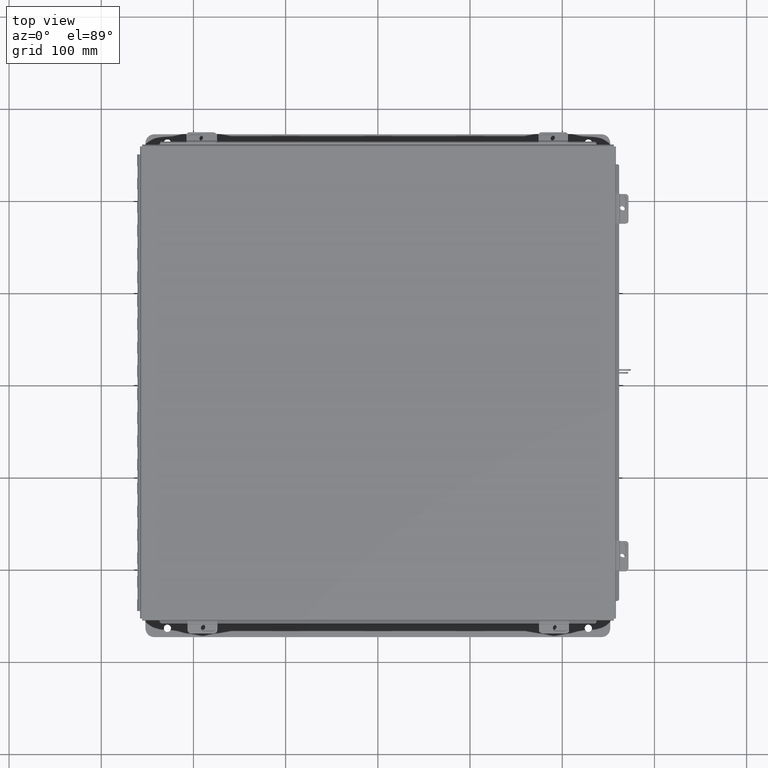
[diagram: clean part render]
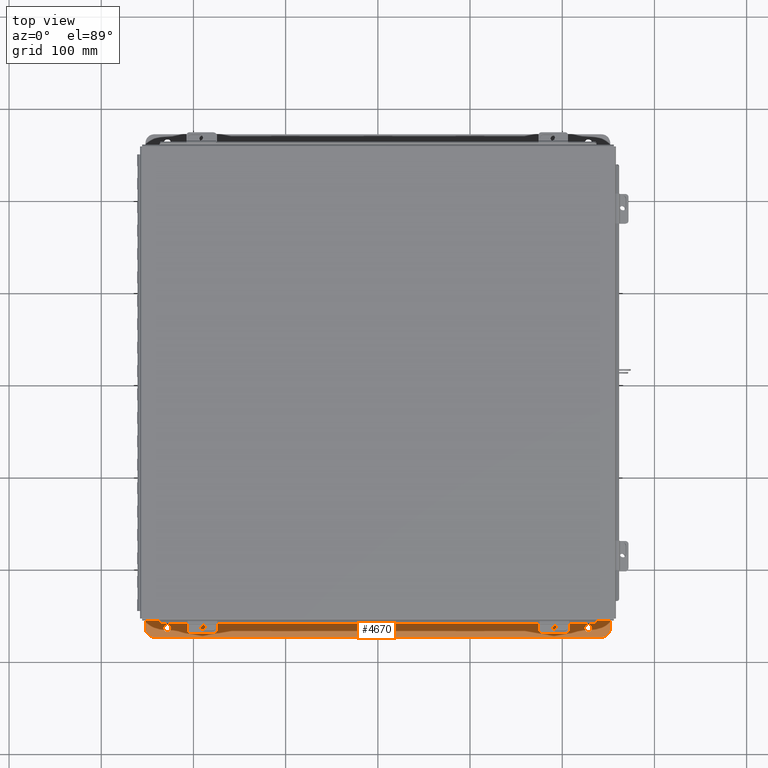
[diagram: same view with one face highlighted and labeled with its STEP entity id]
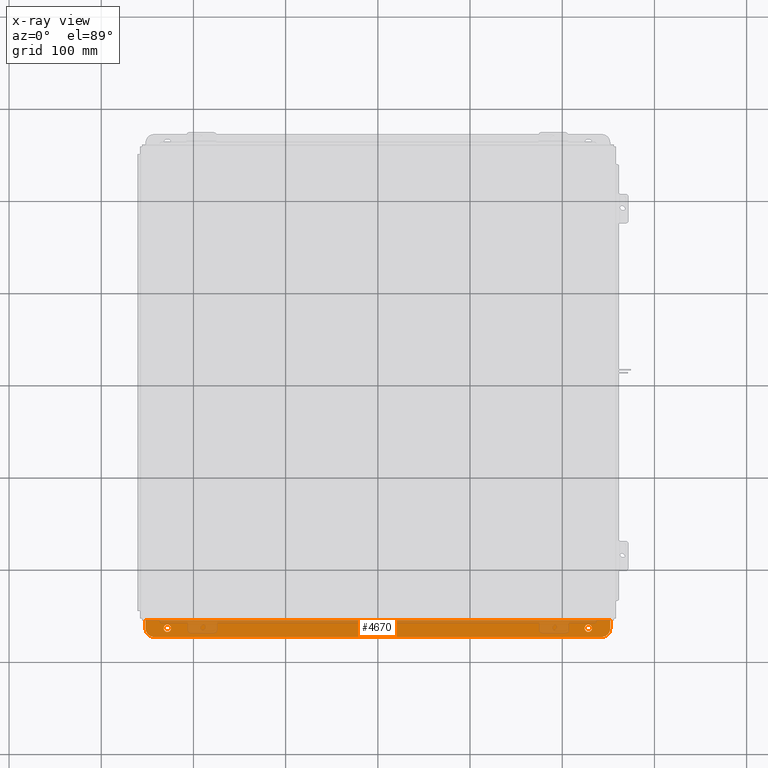
[diagram: x-ray of the same camera — body ghosted, the highlighted face saturated]
A machine part, top view. The second image highlights one B-rep face of the part: STEP entity #4670.
The next image is the same camera in x-ray: the body ghosted, the highlighted face saturated — about 27% of this face is hidden behind the body in this view.
In plain terms, the highlighted planar face has unit normal (0, -0, 1).
Its self-contained STEP definition (entity closure, byte-faithful):
#595 = CARTESIAN_POINT ( 'NONE',  ( -8.987799999999998200, 0.3628000000000008400, -4.112300000000001200 ) ) ;
#888 = AXIS2_PLACEMENT_3D ( 'NONE', #14264, #15981, #5671 ) ;
#908 = DIRECTION ( 'NONE',  ( -0.0000000000000000000, -3.702694488566362300E-015, -1.000000000000000000 ) ) ;
#938 = ORIENTED_EDGE ( 'NONE', *, *, #2925, .F. ) ;
#1858 = ORIENTED_EDGE ( 'NONE', *, *, #11204, .F. ) ;
#2346 = DIRECTION ( 'NONE',  ( 0.0000000000000000000, -1.000000000000000000, 3.502369222646487400E-015 ) ) ;
#2482 = AXIS2_PLACEMENT_3D ( 'NONE', #19845, #9485, #21601 ) ;
#2511 = EDGE_LOOP ( 'NONE', ( #938, #17728, #1858, #19489, #3172, #13372 ) ) ;
#2573 = EDGE_CURVE ( 'NONE', #14212, #21218, #16436, .T. ) ;
#2609 = ORIENTED_EDGE ( 'NONE', *, *, #13021, .T. ) ;
#2630 = CARTESIAN_POINT ( 'NONE',  ( 9.925299999999998200, 1.748382715945128500E-014, -4.112299999999999400 ) ) ;
#2925 = EDGE_CURVE ( 'NONE', #17895, #21218, #8885, .T. ) ;
#2969 = LINE ( 'NONE', #19242, #12122 ) ;
#3087 = EDGE_CURVE ( 'NONE', #11777, #16575, #9698, .T. ) ;
#3172 = ORIENTED_EDGE ( 'NONE', *, *, #8065, .F. ) ;
#3209 = CARTESIAN_POINT ( 'NONE',  ( -9.550299999999998200, 0.7378000000000011200, -4.112300000000002100 ) ) ;
#3215 = VECTOR ( 'NONE', #6114, 39.37007874015748100 ) ;
#3935 = PLANE ( 'NONE',  #888 ) ;
#4392 = DIRECTION ( 'NONE',  ( -1.000000000000000000, -2.752408485047608900E-017, 0.0000000000000000000 ) ) ;
#4429 = EDGE_CURVE ( 'NONE', #17895, #12416, #14529, .T. ) ;
#4670 = ADVANCED_FACE ( 'NONE', ( #14557, #19140, #5934 ), #3935, .T. ) ;
#5631 = DIRECTION ( 'NONE',  ( -0.0000000000000000000, -3.702694488566362300E-015, -1.000000000000000000 ) ) ;
#5671 = DIRECTION ( 'NONE',  ( -4.919856193148104900E-031, -1.000000000000000000, 3.702694488566362300E-015 ) ) ;
#5678 = EDGE_CURVE ( 'NONE', #16575, #11777, #8844, .T. ) ;
#5771 = EDGE_CURVE ( 'NONE', #14633, #19037, #6696, .T. ) ;
#5785 = EDGE_CURVE ( 'NONE', #21493, #16794, #21577, .T. ) ;
#5934 = FACE_OUTER_BOUND ( 'NONE', #2511, .T. ) ;
#5940 = CARTESIAN_POINT ( 'NONE',  ( 9.550299999999998200, 0.3628000000000161700, -4.112300000000001200 ) ) ;
#6114 = DIRECTION ( 'NONE',  ( -4.919856193148104900E-031, -1.000000000000000000, 3.702694488566362300E-015 ) ) ;
#6696 = CIRCLE ( 'NONE', #19583, 0.1560000000000001700 ) ;
#7365 = EDGE_LOOP ( 'NONE', ( #15578, #2609 ) ) ;
#7685 = DIRECTION ( 'NONE',  ( 0.0000000000000000000, -1.000000000000000000, 4.370956789862820400E-015 ) ) ;
#8065 = EDGE_CURVE ( 'NONE', #14212, #21493, #12925, .T. ) ;
#8138 = AXIS2_PLACEMENT_3D ( 'NONE', #15943, #5631, #17681 ) ;
#8844 = CIRCLE ( 'NONE', #10300, 0.1560000000000001700 ) ;
#8885 = LINE ( 'NONE', #16102, #21615 ) ;
#8918 = DIRECTION ( 'NONE',  ( 4.919856193148104900E-031, 1.000000000000000000, -3.702694488566362300E-015 ) ) ;
#9485 = DIRECTION ( 'NONE',  ( 0.0000000000000000000, 3.702694488566362300E-015, 1.000000000000000000 ) ) ;
#9521 = CARTESIAN_POINT ( 'NONE',  ( 9.925299999999998200, 0.01300000000001759100, -4.112299999999999400 ) ) ;
#9527 = DIRECTION ( 'NONE',  ( -0.0000000000000000000, -3.702694488566362300E-015, -1.000000000000000000 ) ) ;
#9567 = CARTESIAN_POINT ( 'NONE',  ( 9.925299999999998200, 0.01300000000001759100, -4.112299999999999400 ) ) ;
#9608 = AXIS2_PLACEMENT_3D ( 'NONE', #19891, #9527, #21644 ) ;
#9698 = CIRCLE ( 'NONE', #8138, 0.1560000000000001700 ) ;
#10300 = AXIS2_PLACEMENT_3D ( 'NONE', #595, #12664, #2346 ) ;
#10385 = CARTESIAN_POINT ( 'NONE',  ( -9.925299999999996500, 0.01299999999999792100, -4.112300000000003800 ) ) ;
#11204 = EDGE_CURVE ( 'NONE', #16794, #12416, #2969, .T. ) ;
#11255 = CARTESIAN_POINT ( 'NONE',  ( 8.987799999999998200, 0.3628000000000161700, -4.112300000000001200 ) ) ;
#11284 = AXIS2_PLACEMENT_3D ( 'NONE', #5940, #17983, #7685 ) ;
#11777 = VERTEX_POINT ( 'NONE', #12557 ) ;
#12122 = VECTOR ( 'NONE', #8918, 39.37007874015748100 ) ;
#12416 = VERTEX_POINT ( 'NONE', #18377 ) ;
#12557 = CARTESIAN_POINT ( 'NONE',  ( -8.987800000000007100, 0.2068000000000006800, -4.112300000000000300 ) ) ;
#12664 = DIRECTION ( 'NONE',  ( -0.0000000000000000000, -3.702694488566362300E-015, -1.000000000000000000 ) ) ;
#12724 = DIRECTION ( 'NONE',  ( 1.000000000000000000, 4.910036603141682400E-031, -0.0000000000000000000 ) ) ;
#12925 = LINE ( 'NONE', #2630, #3215 ) ;
#12974 = DIRECTION ( 'NONE',  ( 0.0000000000000000000, -1.000000000000000000, 3.502369222646487400E-015 ) ) ;
#13021 = EDGE_CURVE ( 'NONE', #19037, #14633, #14759, .T. ) ;
#13372 = ORIENTED_EDGE ( 'NONE', *, *, #2573, .T. ) ;
#14212 = VERTEX_POINT ( 'NONE', #22161 ) ;
#14264 = CARTESIAN_POINT ( 'NONE',  ( -2.035385365534024800E-024, -1.311287036958846300E-014, -4.112299999999999400 ) ) ;
#14529 = CIRCLE ( 'NONE', #2482, 0.3750000000000000600 ) ;
#14557 = FACE_BOUND ( 'NONE', #16789, .T. ) ;
#14633 = VERTEX_POINT ( 'NONE', #16261 ) ;
#14759 = CIRCLE ( 'NONE', #9608, 0.1560000000000001700 ) ;
#15294 = VECTOR ( 'NONE', #4392, 39.37007874015748100 ) ;
#15578 = ORIENTED_EDGE ( 'NONE', *, *, #5771, .T. ) ;
#15842 = CARTESIAN_POINT ( 'NONE',  ( -8.987800000000007100, 0.5188000000000010400, -4.112300000000001200 ) ) ;
#15943 = CARTESIAN_POINT ( 'NONE',  ( -8.987799999999998200, 0.3628000000000008400, -4.112300000000001200 ) ) ;
#15981 = DIRECTION ( 'NONE',  ( 0.0000000000000000000, 3.702694488566362300E-015, 1.000000000000000000 ) ) ;
#16102 = CARTESIAN_POINT ( 'NONE',  ( 9.925299999999998200, 0.7378000000000163300, -4.112300000000006500 ) ) ;
#16261 = CARTESIAN_POINT ( 'NONE',  ( 8.987799999999989400, 0.5188000000000163600, -4.112300000000001200 ) ) ;
#16436 = CIRCLE ( 'NONE', #11284, 0.3750000000000000600 ) ;
#16575 = VERTEX_POINT ( 'NONE', #15842 ) ;
#16789 = EDGE_LOOP ( 'NONE', ( #21097, #20332 ) ) ;
#16794 = VERTEX_POINT ( 'NONE', #10385 ) ;
#17368 = CARTESIAN_POINT ( 'NONE',  ( 9.550299999999998200, 0.7378000000000163300, -4.112300000000002100 ) ) ;
#17681 = DIRECTION ( 'NONE',  ( 0.0000000000000000000, -1.000000000000000000, 3.502369222646487400E-015 ) ) ;
#17728 = ORIENTED_EDGE ( 'NONE', *, *, #4429, .T. ) ;
#17895 = VERTEX_POINT ( 'NONE', #3209 ) ;
#17954 = CARTESIAN_POINT ( 'NONE',  ( 8.987799999999989400, 0.2068000000000159700, -4.112300000000000300 ) ) ;
#17983 = DIRECTION ( 'NONE',  ( 0.0000000000000000000, 3.702694488566362300E-015, 1.000000000000000000 ) ) ;
#18377 = CARTESIAN_POINT ( 'NONE',  ( -9.925299999999998200, 0.3628000000000008400, -4.112300000000001200 ) ) ;
#19037 = VERTEX_POINT ( 'NONE', #17954 ) ;
#19140 = FACE_BOUND ( 'NONE', #7365, .T. ) ;
#19242 = CARTESIAN_POINT ( 'NONE',  ( -9.925299999999998200, 0.7378000000000011200, -4.112300000000002100 ) ) ;
#19489 = ORIENTED_EDGE ( 'NONE', *, *, #5785, .F. ) ;
#19583 = AXIS2_PLACEMENT_3D ( 'NONE', #11255, #908, #12974 ) ;
#19845 = CARTESIAN_POINT ( 'NONE',  ( -9.550299999999998200, 0.3628000000000008400, -4.112300000000001200 ) ) ;
#19891 = CARTESIAN_POINT ( 'NONE',  ( 8.987799999999998200, 0.3628000000000161700, -4.112300000000001200 ) ) ;
#20332 = ORIENTED_EDGE ( 'NONE', *, *, #3087, .T. ) ;
#21097 = ORIENTED_EDGE ( 'NONE', *, *, #5678, .T. ) ;
#21218 = VERTEX_POINT ( 'NONE', #17368 ) ;
#21493 = VERTEX_POINT ( 'NONE', #9567 ) ;
#21577 = LINE ( 'NONE', #9521, #15294 ) ;
#21601 = DIRECTION ( 'NONE',  ( 0.0000000000000000000, -1.000000000000000000, 4.370956789862820400E-015 ) ) ;
#21615 = VECTOR ( 'NONE', #12724, 39.37007874015748100 ) ;
#21644 = DIRECTION ( 'NONE',  ( 0.0000000000000000000, -1.000000000000000000, 3.502369222646487400E-015 ) ) ;
#22161 = CARTESIAN_POINT ( 'NONE',  ( 9.925299999999998200, 0.3628000000000161700, -4.112300000000001200 ) ) ;